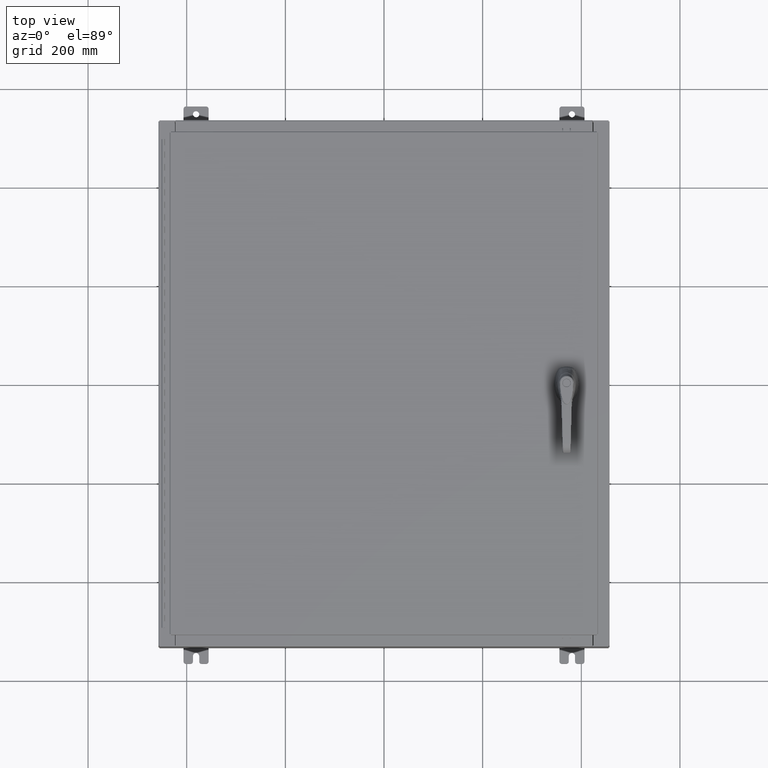
[diagram: clean part render]
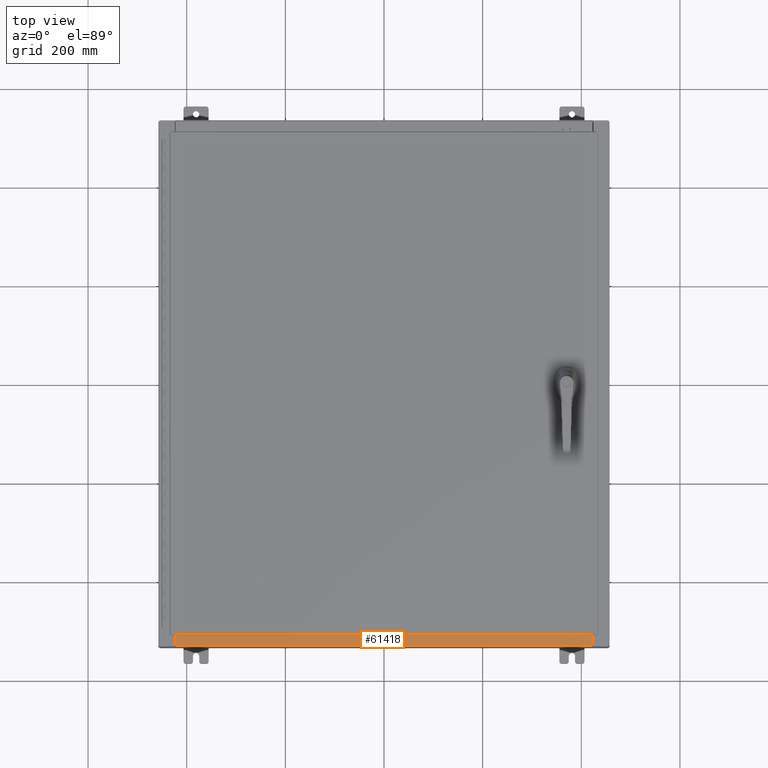
[diagram: same view with one face highlighted and labeled with its STEP entity id]
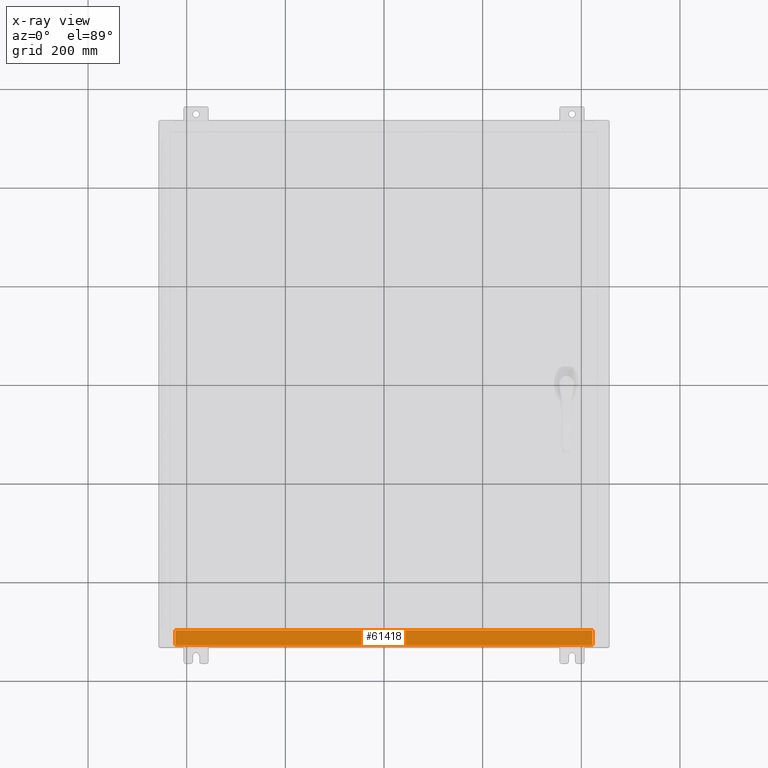
[diagram: x-ray of the same camera — body ghosted, the highlighted face saturated]
A machine part, top view. The second image highlights one B-rep face of the part: STEP entity #61418.
The next image is the same camera in x-ray: the body ghosted, the highlighted face saturated — about 0% of this face is hidden behind the body in this view.
In plain terms, the highlighted planar face has unit normal (-0, -0, 1).
Its self-contained STEP definition (entity closure, byte-faithful):
#2745 = ORIENTED_EDGE ( 'NONE', *, *, #125863, .T. ) ;
#6700 = CARTESIAN_POINT ( 'NONE',  ( 16.63720000000000700, -1.287299999999999900, 4.000000000000004400 ) ) ;
#7683 = ORIENTED_EDGE ( 'NONE', *, *, #77061, .F. ) ;
#15918 = VECTOR ( 'NONE', #107504, 39.37007874015748100 ) ;
#18947 = VECTOR ( 'NONE', #79716, 39.37007874015748100 ) ;
#19499 = EDGE_CURVE ( 'NONE', #42641, #77289, #42486, .T. ) ;
#20270 = EDGE_CURVE ( 'NONE', #96416, #127858, #45462, .T. ) ;
#26669 = CARTESIAN_POINT ( 'NONE',  ( 0.0000000000000000000, 1.425992975200418500E-014, 4.000000000000000900 ) ) ;
#27297 = CARTESIAN_POINT ( 'NONE',  ( -16.63719999999999600, -0.07469999999999973900, 4.000000000000000900 ) ) ;
#32284 = LINE ( 'NONE', #75636, #106015 ) ;
#32379 = CARTESIAN_POINT ( 'NONE',  ( 16.63720000000000400, -1.287299999999999900, 4.000000000000004400 ) ) ;
#34585 = CARTESIAN_POINT ( 'NONE',  ( -16.63719999999999600, -0.08769999999999972300, 4.000000000000000900 ) ) ;
#35049 = CARTESIAN_POINT ( 'NONE',  ( 16.63720000000000700, -0.08769999999999937600, 4.000000000000000900 ) ) ;
#36646 = DIRECTION ( 'NONE',  ( 0.0000000000000000000, 3.566381192773190000E-015, 1.000000000000000000 ) ) ;
#40564 = FACE_OUTER_BOUND ( 'NONE', #108174, .T. ) ;
#42486 = LINE ( 'NONE', #27297, #15918 ) ;
#42641 = VERTEX_POINT ( 'NONE', #110376 ) ;
#45462 = LINE ( 'NONE', #89347, #18947 ) ;
#46239 = PLANE ( 'NONE',  #117413 ) ;
#46409 = DIRECTION ( 'NONE',  ( -1.000000000000000000, 0.0000000000000000000, 0.0000000000000000000 ) ) ;
#61418 = ADVANCED_FACE ( 'NONE', ( #40564 ), #46239, .T. ) ;
#67220 = VECTOR ( 'NONE', #46409, 39.37007874015748100 ) ;
#75636 = CARTESIAN_POINT ( 'NONE',  ( -2.880088825576348200E-018, -0.08769999999999972300, 4.000000000000000900 ) ) ;
#77061 = EDGE_CURVE ( 'NONE', #127858, #42641, #90808, .T. ) ;
#77212 = ORIENTED_EDGE ( 'NONE', *, *, #19499, .F. ) ;
#77289 = VERTEX_POINT ( 'NONE', #34585 ) ;
#79716 = DIRECTION ( 'NONE',  ( -0.0000000000000000000, -1.000000000000000000, 3.566381192773190000E-015 ) ) ;
#89347 = CARTESIAN_POINT ( 'NONE',  ( 16.63720000000000400, -1.300299999999999800, 4.000000000000004400 ) ) ;
#90808 = LINE ( 'NONE', #6700, #67220 ) ;
#96416 = VERTEX_POINT ( 'NONE', #35049 ) ;
#106015 = VECTOR ( 'NONE', #126113, 39.37007874015748100 ) ;
#106854 = DIRECTION ( 'NONE',  ( 0.0000000000000000000, -1.000000000000000000, 3.566381192773190000E-015 ) ) ;
#107504 = DIRECTION ( 'NONE',  ( -0.0000000000000000000, 1.000000000000000000, -3.566381192773190000E-015 ) ) ;
#108174 = EDGE_LOOP ( 'NONE', ( #77212, #7683, #127637, #2745 ) ) ;
#110376 = CARTESIAN_POINT ( 'NONE',  ( -16.63719999999999600, -1.287299999999999200, 4.000000000000004400 ) ) ;
#117413 = AXIS2_PLACEMENT_3D ( 'NONE', #26669, #36646, #106854 ) ;
#125863 = EDGE_CURVE ( 'NONE', #96416, #77289, #32284, .T. ) ;
#126113 = DIRECTION ( 'NONE',  ( -1.000000000000000000, 3.284023746380717400E-017, -1.171208052571274300E-031 ) ) ;
#127637 = ORIENTED_EDGE ( 'NONE', *, *, #20270, .F. ) ;
#127858 = VERTEX_POINT ( 'NONE', #32379 ) ;